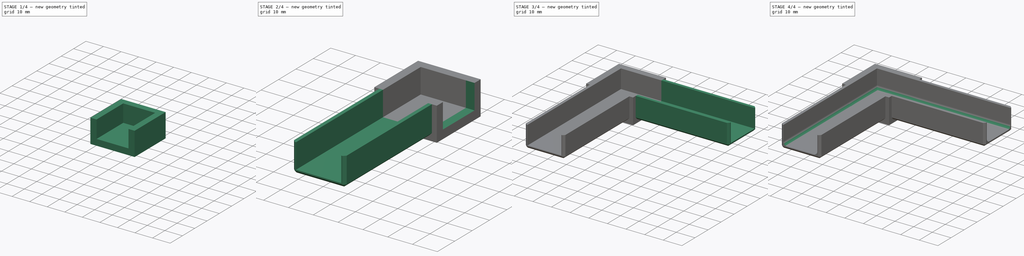
[diagram: build sequence overview — one tinted view per stage of 4, left to right]
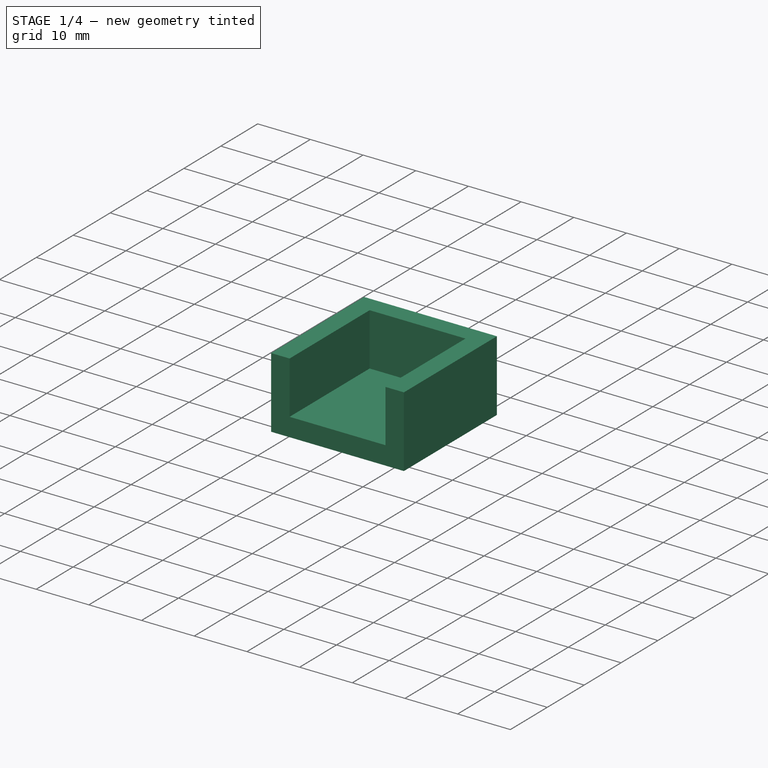
[diagram: stage 1 of 4 — iso view after this stage's code; geometry added in this stage tinted green]
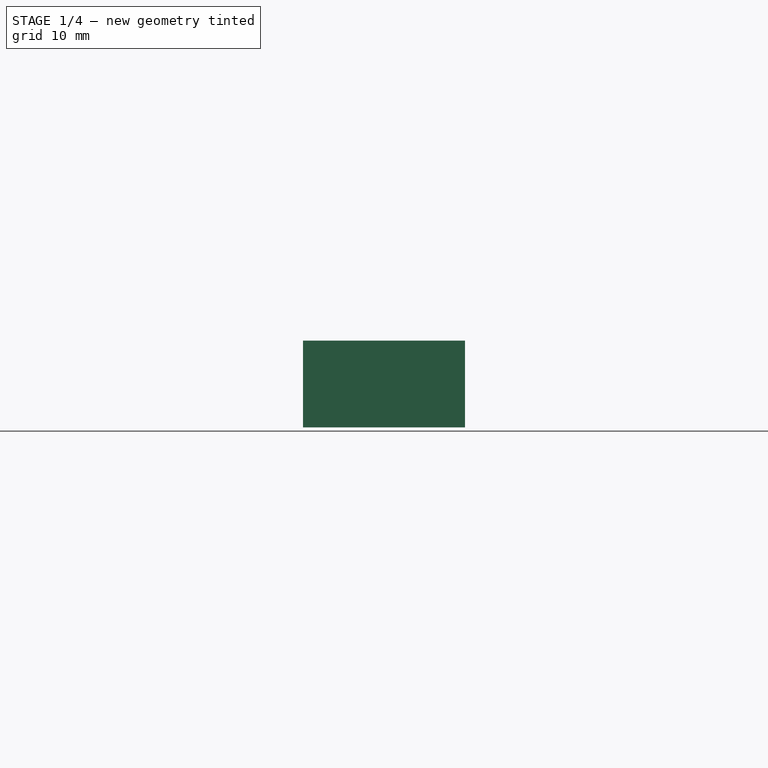
[diagram: stage 1 of 4 — front view after this stage's code; geometry added in this stage tinted green]
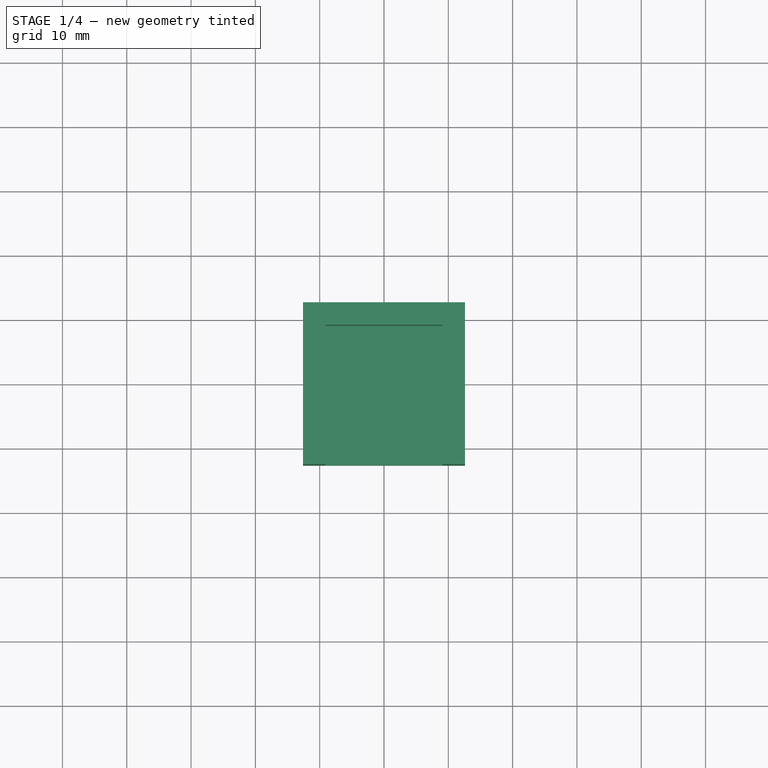
[diagram: stage 1 of 4 — top view after this stage's code; geometry added in this stage tinted green]
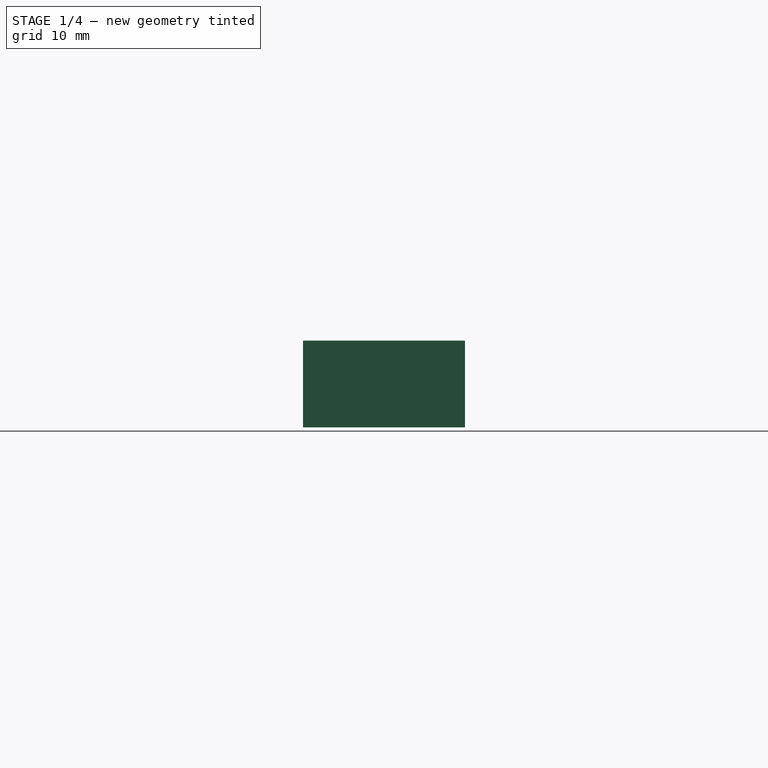
[diagram: stage 1 of 4 — right view after this stage's code; geometry added in this stage tinted green]
FCSTD DOCUMENT  (FreeCAD 0.20R29603 (Git))
Label: Eckverbinder 25x25x2mm Halbsschale
License: All rights reserved
LicenseURL: http://en.wikipedia.org/wiki/All_rights_reserved
objects: Sketcher::SketchObject×5, PartDesign::Pad×3, PartDesign::Fillet×3, PartDesign::Pocket×2, PartDesign::Chamfer×2, PartDesign::Thickness×1, PartDesign::Body×1
note: 28 computed .brp shape members not serialized (recipe doc carries the construction recipe); baked Part::Feature solids carry a one-line shape summary decoded from their .brp

FEATURE [Sketcher::SketchObject] Sketch
  FullyConstrained = true
  MapMode = 5
  Support = -> [XY_Plane]
  sketch-geometry (5):
    g0: LineSegment StartX=-12.6 StartY=12.6 StartZ=0 EndX=-12.6 EndY=-12.6 EndZ=0
    g1: LineSegment StartX=-12.6 StartY=-12.6 StartZ=0 EndX=12.6 EndY=-12.6 EndZ=0
    g2: LineSegment StartX=12.6 StartY=-12.6 StartZ=0 EndX=12.6 EndY=12.6 EndZ=0
    g3: LineSegment StartX=12.6 StartY=12.6 StartZ=0 EndX=-12.6 EndY=12.6 EndZ=0
    g4: GeomPoint X=0 Y=0 Z=0
  constraints (12):
    c: Coincident(g0,g1)
    c: Coincident(g1,g2)
    c: Coincident(g2,g3)
    c: Coincident(g3,g0)
    c: Horizontal(g1)
    c: Horizontal(g3)
    c: Vertical(g0)
    c: Vertical(g2)
    c: Symmetric(g1,g0,g4)
    c: Coincident(g4,g-1)
    c: Distance(g3) = 25.2
    c: Distance(g2) = 25.2
FEATURE [PartDesign::Pad] Pad
  Direction = (0,0,1)
  Length = 13.5
  Length2 = 10
  Profile = -> Sketch
  ReferenceAxis = -> Sketch [N_Axis]
  Type = 0
FEATURE [PartDesign::Thickness] Thickness
  Base = -> Pad [Face6]
  BaseFeature = -> Pad
  Intersection = false
  Join = 1
  Mode = 0
  Reversed = true
  SupportTransform = false
  Value = 3.5
FEATURE [Sketcher::SketchObject] Sketch001
  ExternalGeometry = -> [Thickness]
  FullyConstrained = true
  MapMode = 5
  Placement = pos=(0,-12.6,0) rot=(1,0,0;1.5708rad)
  Support = -> [Thickness]
  sketch-geometry (4):
    g0: LineSegment StartX=-9.1 StartY=13.5 StartZ=0 EndX=9.1 EndY=13.5 EndZ=0
    g1: LineSegment StartX=9.1 StartY=13.5 StartZ=0 EndX=9.1 EndY=3.5 EndZ=0
    g2: LineSegment StartX=9.1 StartY=3.5 StartZ=0 EndX=-9.1 EndY=3.5 EndZ=0
    g3: LineSegment StartX=-9.1 StartY=3.5 StartZ=0 EndX=-9.1 EndY=13.5 EndZ=0
  constraints (11):
    c: Coincident(g0,g1)
    c: Coincident(g1,g2)
    c: Coincident(g2,g3)
    c: Coincident(g3,g0)
    c: Horizontal(g0)
    c: Vertical(g1)
    c: Vertical(g3)
    c: PointOnObject(g0,g-3)
    c: Symmetric(g2,g1,g-2)
    c: Distance(g1,g-4) = 3.5
    c: Distance(g-5,g1) = 3.5
FEATURE [PartDesign::Pocket] Pocket
  BaseFeature = -> Thickness
  Direction = (0,1,-2e-16)
  Length = 3.5
  Length2 = 5
  Profile = -> Sketch001
  ReferenceAxis = -> Sketch001 [N_Axis]
  Type = 0
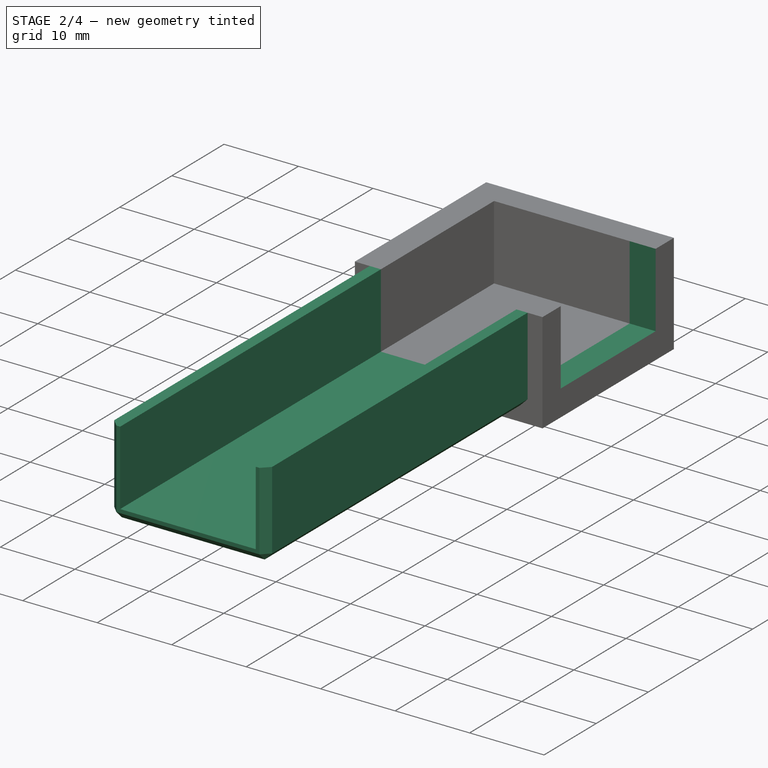
[diagram: stage 2 of 4 — iso view after this stage's code; geometry added in this stage tinted green]
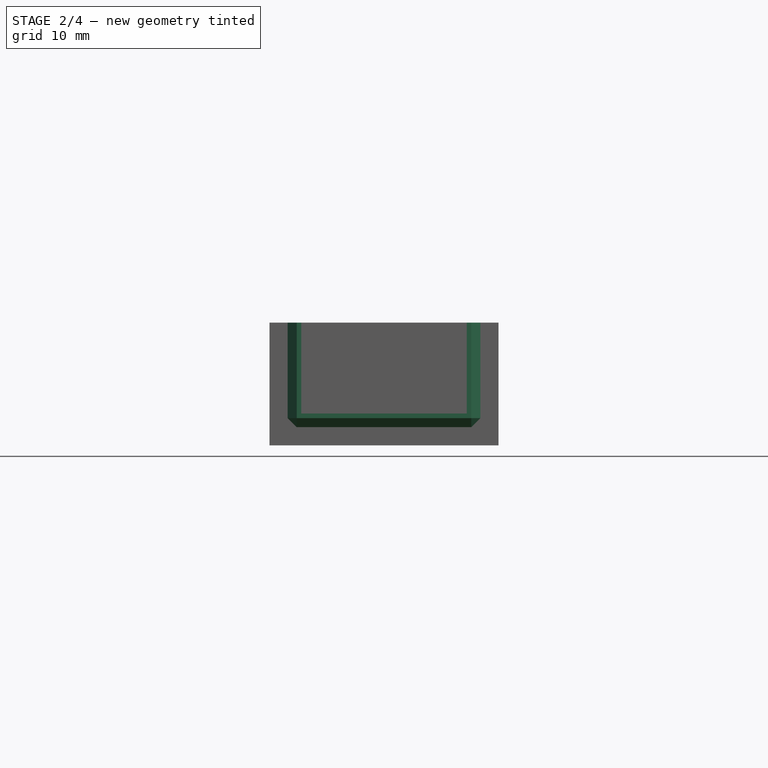
[diagram: stage 2 of 4 — front view after this stage's code; geometry added in this stage tinted green]
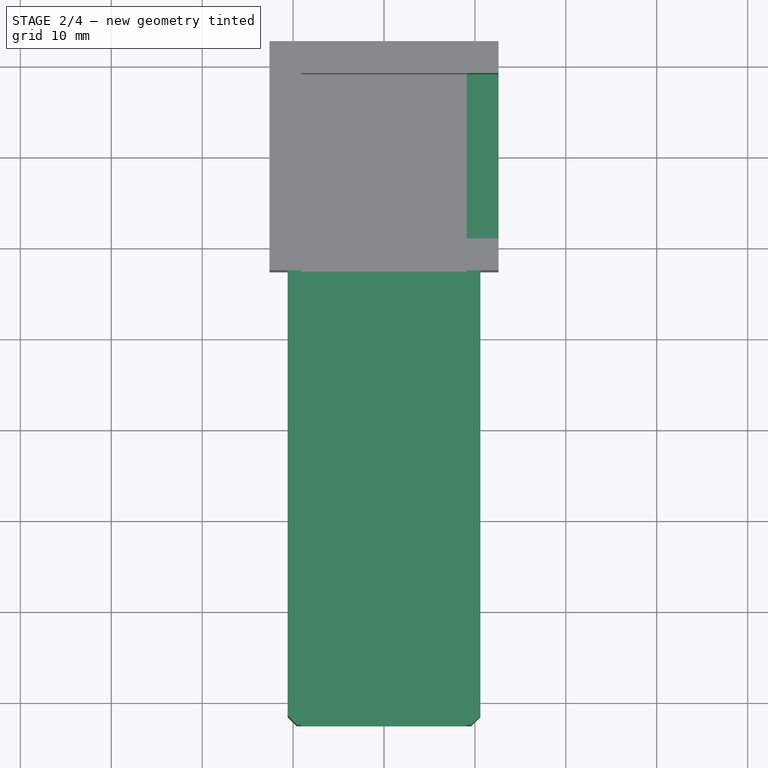
[diagram: stage 2 of 4 — top view after this stage's code; geometry added in this stage tinted green]
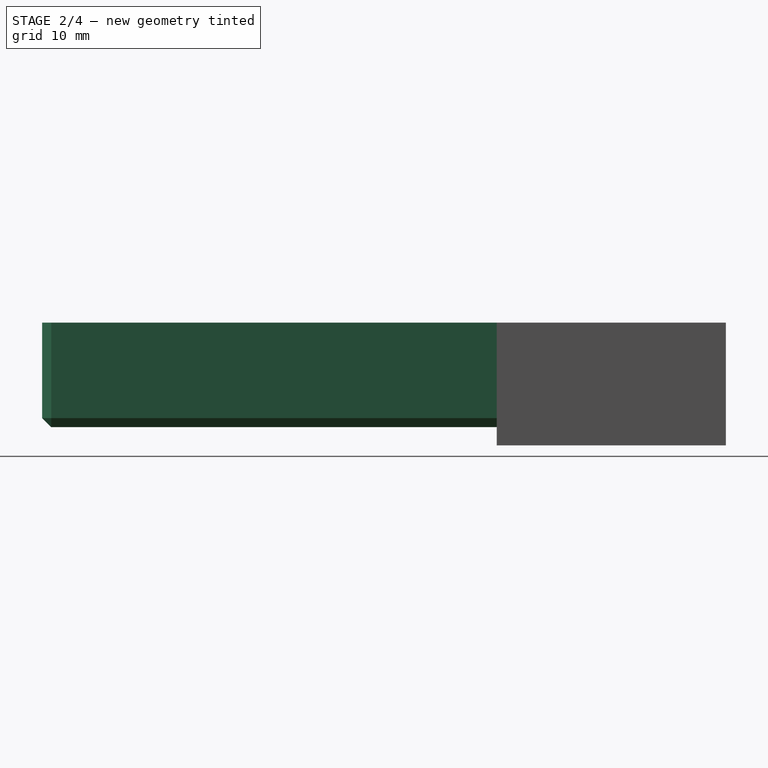
[diagram: stage 2 of 4 — right view after this stage's code; geometry added in this stage tinted green]
FEATURE [Sketcher::SketchObject] Sketch002
  ExternalGeometry = -> [Pocket]
  FullyConstrained = true
  MapMode = 5
  Placement = pos=(0,-12.6,0) rot=(1,0,0;1.5708rad)
  Support = -> [Pocket]
  sketch-geometry (8):
    g0: LineSegment StartX=-10.6 StartY=13.5 StartZ=0 EndX=-10.6 EndY=2 EndZ=0
    g1: LineSegment StartX=-10.6 StartY=2 StartZ=0 EndX=10.6 EndY=2 EndZ=0
    g2: LineSegment StartX=10.6 StartY=2 StartZ=0 EndX=10.6 EndY=13.5 EndZ=0
    g3: LineSegment StartX=10.6 StartY=13.5 StartZ=0 EndX=9.1 EndY=13.5 EndZ=0
    g4: LineSegment StartX=9.1 StartY=13.5 StartZ=0 EndX=9.1 EndY=3.5 EndZ=0
    g5: LineSegment StartX=9.1 StartY=3.5 StartZ=0 EndX=-9.1 EndY=3.5 EndZ=0
    g6: LineSegment StartX=-9.1 StartY=3.5 StartZ=0 EndX=-9.1 EndY=13.5 EndZ=0
    g7: LineSegment StartX=-9.1 StartY=13.5 StartZ=0 EndX=-10.6 EndY=13.5 EndZ=0
  constraints (20):
    c: PointOnObject(g0,g-3)
    c: Vertical(g0)
    c: Coincident(g0,g1)
    c: Coincident(g1,g2)
    c: PointOnObject(g2,g-6)
    c: Vertical(g2)
    c: Coincident(g2,g3)
    c: Coincident(g3,g4)
    c: Vertical(g4)
    c: Coincident(g4,g5)
    c: Horizontal(g5)
    c: Coincident(g5,g6)
    c: Coincident(g6,g7)
    c: Coincident(g7,g0)
    c: Distance(g-4,g0) = 2
    c: Coincident(g6,g-3)
    c: Coincident(g3,g-6)
    c: Distance(g0,g-5) = 2
    c: Coincident(g5,g-7)
    c: Symmetric(g0,g1,g-2)
FEATURE [PartDesign::Pad] Pad001
  BaseFeature = -> Pocket
  Direction = (0,-1,2e-16)
  Length = 50
  Length2 = 10
  Profile = -> Sketch002
  ReferenceAxis = -> Sketch002 [N_Axis]
  Type = 0
FEATURE [PartDesign::Chamfer] Chamfer
  Angle = 45
  Base = -> Pad001 [Edge28,Edge24,Edge27,Edge26,Edge30]
  BaseFeature = -> Pad001
  ChamferType = 0
  FlipDirection = false
  Size = 1
  Size2 = 1
  SupportTransform = false
  UseAllEdges = false
FEATURE [Sketcher::SketchObject] Sketch003
  ExternalGeometry = -> [Chamfer]
  FullyConstrained = true
  MapMode = 5
  Placement = pos=(12.6,0,0) rot=(0.57735,0.57735,0.57735;2.0944rad)
  Support = -> [Chamfer]
  sketch-geometry (4):
    g0: LineSegment StartX=-9.1 StartY=13.5 StartZ=0 EndX=9.1 EndY=13.5 EndZ=0
    g1: LineSegment StartX=9.1 StartY=13.5 StartZ=0 EndX=9.1 EndY=3.5 EndZ=0
    g2: LineSegment StartX=9.1 StartY=3.5 StartZ=0 EndX=-9.1 EndY=3.5 EndZ=0
    g3: LineSegment StartX=-9.1 StartY=3.5 StartZ=0 EndX=-9.1 EndY=13.5 EndZ=0
  constraints (11):
    c: Coincident(g0,g1)
    c: Coincident(g1,g2)
    c: Coincident(g2,g3)
    c: Coincident(g3,g0)
    c: Horizontal(g0)
    c: Vertical(g1)
    c: Vertical(g3)
    c: PointOnObject(g0,g-3)
    c: Distance(g1,g-4) = 3.5
    c: Distance(g1,g-5) = 3.5
    c: Symmetric(g1,g2,g-2)
FEATURE [PartDesign::Pocket] Pocket001
  BaseFeature = -> Chamfer
  Direction = (-1,0,0)
  Length = 3.5
  Length2 = 5
  Profile = -> Sketch003
  ReferenceAxis = -> Sketch003 [N_Axis]
  Type = 0
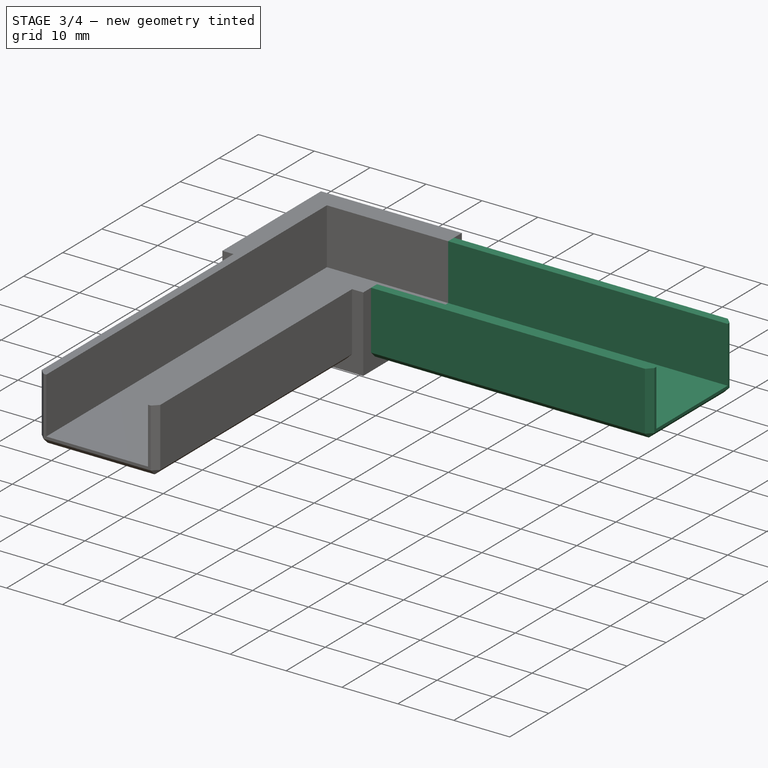
[diagram: stage 3 of 4 — iso view after this stage's code; geometry added in this stage tinted green]
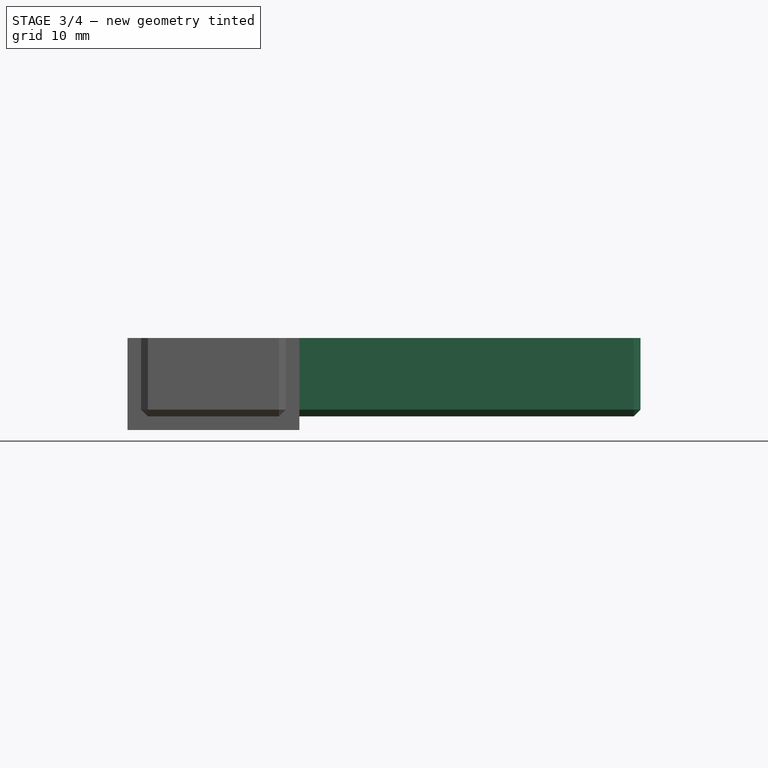
[diagram: stage 3 of 4 — front view after this stage's code; geometry added in this stage tinted green]
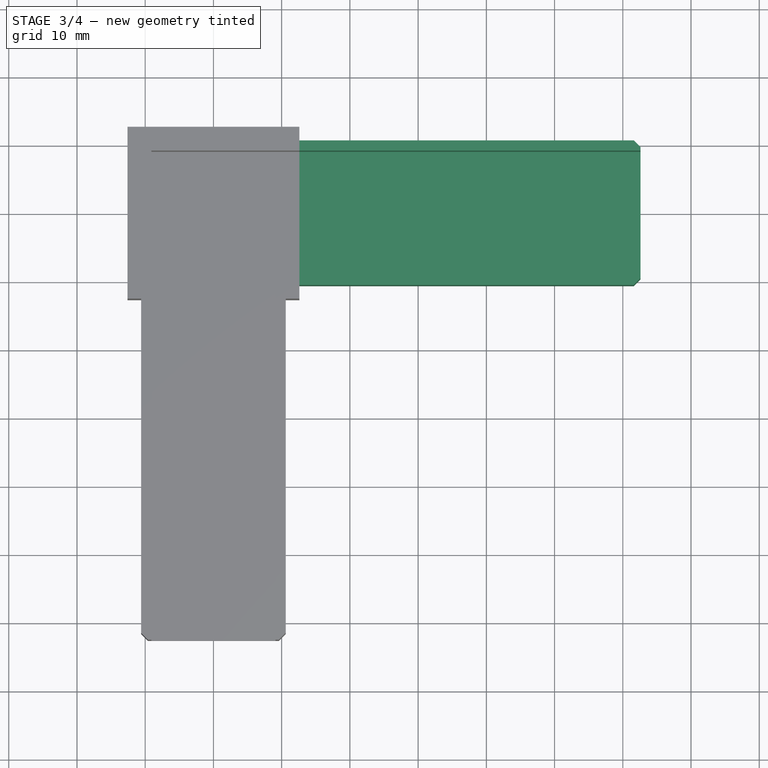
[diagram: stage 3 of 4 — top view after this stage's code; geometry added in this stage tinted green]
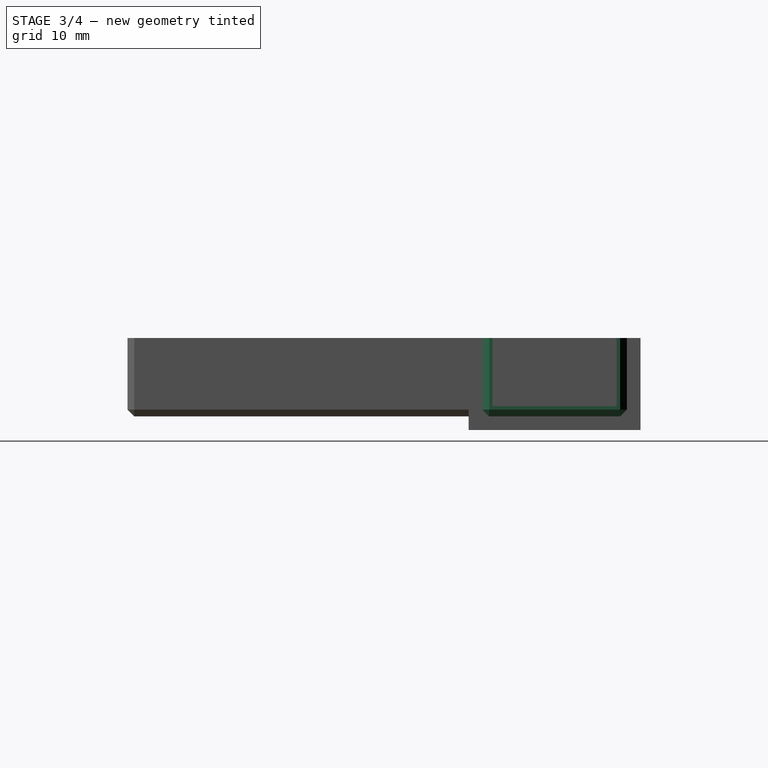
[diagram: stage 3 of 4 — right view after this stage's code; geometry added in this stage tinted green]
FEATURE [Sketcher::SketchObject] Sketch004
  ExternalGeometry = -> [Pocket001]
  FullyConstrained = true
  MapMode = 5
  Placement = pos=(12.6,0,0) rot=(0.57735,0.57735,0.57735;2.0944rad)
  Support = -> [Pocket001]
  sketch-geometry (8):
    g0: LineSegment StartX=10.6 StartY=13.5 StartZ=0 EndX=10.6 EndY=2 EndZ=0
    g1: LineSegment StartX=10.6 StartY=2 StartZ=0 EndX=-10.6 EndY=2 EndZ=0
    g2: LineSegment StartX=-10.6 StartY=2 StartZ=0 EndX=-10.6 EndY=13.5 EndZ=0
    g3: LineSegment StartX=-10.6 StartY=13.5 StartZ=0 EndX=-9.1 EndY=13.5 EndZ=0
    g4: LineSegment StartX=-9.1 StartY=13.5 StartZ=0 EndX=-9.1 EndY=3.5 EndZ=0
    g5: LineSegment StartX=-9.1 StartY=3.5 StartZ=0 EndX=9.1 EndY=3.5 EndZ=0
    g6: LineSegment StartX=9.1 StartY=3.5 StartZ=0 EndX=9.1 EndY=13.5 EndZ=0
    g7: LineSegment StartX=9.1 StartY=13.5 StartZ=0 EndX=10.6 EndY=13.5 EndZ=0
  constraints (19):
    c: PointOnObject(g0,g-4)
    c: Vertical(g0)
    c: Coincident(g0,g1)
    c: Coincident(g1,g2)
    c: PointOnObject(g2,g-3)
    c: Vertical(g2)
    c: Coincident(g2,g3)
    c: Coincident(g3,g-3)
    c: Coincident(g3,g4)
    c: Coincident(g4,g-5)
    c: Coincident(g4,g5)
    c: Coincident(g5,g-5)
    c: Coincident(g5,g6)
    c: Coincident(g6,g-4)
    c: Coincident(g6,g7)
    c: Coincident(g7,g0)
    c: Symmetric(g0,g1,g-2)
    c: Distance(g0,g-7) = 2
    c: Distance(g0,g-6) = 2
FEATURE [PartDesign::Pad] Pad002
  BaseFeature = -> Pocket001
  Direction = (1,0,0)
  Length = 50
  Length2 = 10
  Profile = -> Sketch004
  ReferenceAxis = -> Sketch004 [N_Axis]
  Type = 0
FEATURE [PartDesign::Chamfer] Chamfer001
  Angle = 45
  Base = -> Pad002 [Edge63,Edge65,Edge64,Edge62,Edge61]
  BaseFeature = -> Pad002
  ChamferType = 0
  FlipDirection = false
  Size = 1
  Size2 = 1
  SupportTransform = false
  UseAllEdges = false
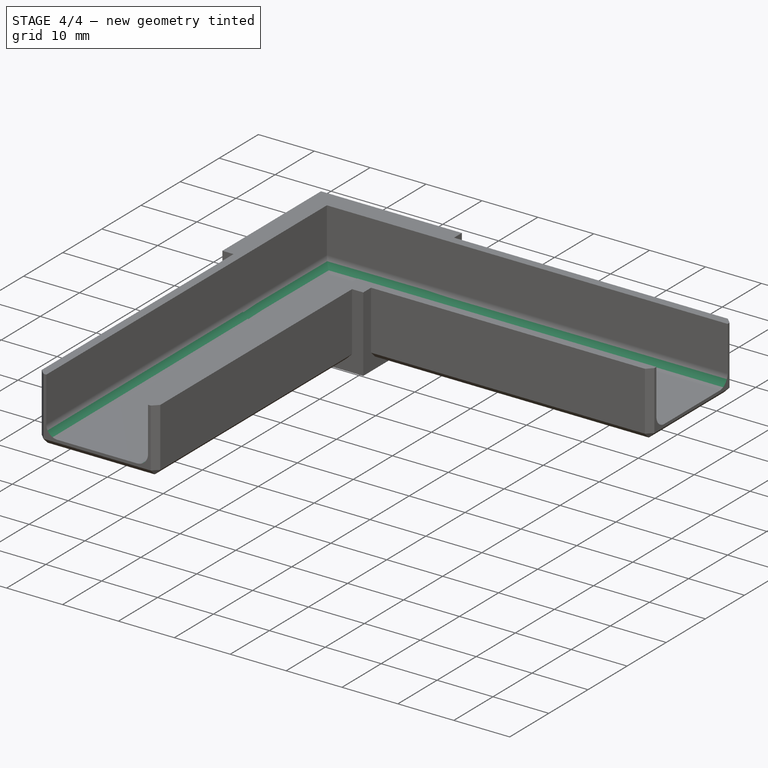
[diagram: stage 4 of 4 — iso view after this stage's code; geometry added in this stage tinted green]
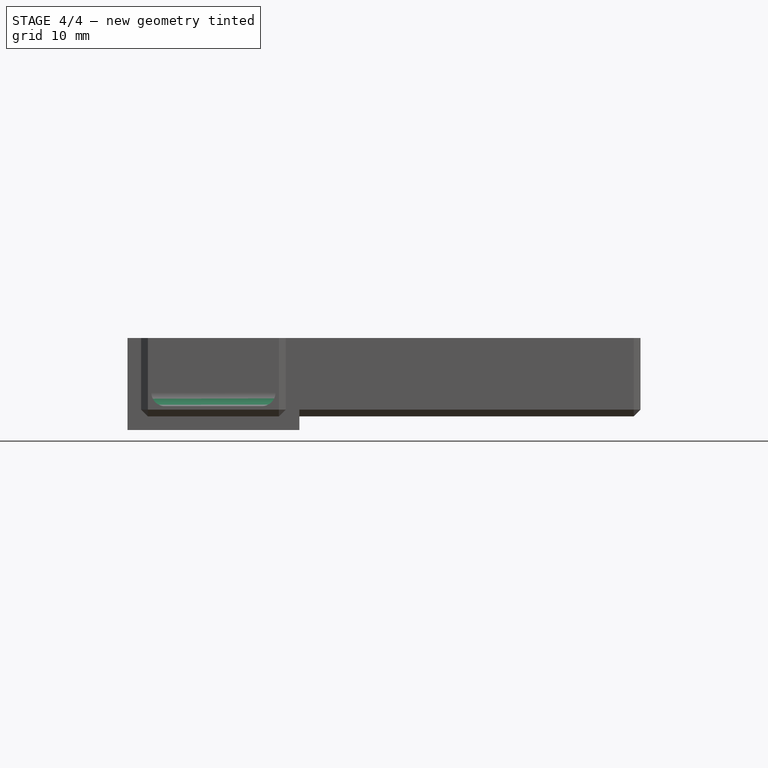
[diagram: stage 4 of 4 — front view after this stage's code; geometry added in this stage tinted green]
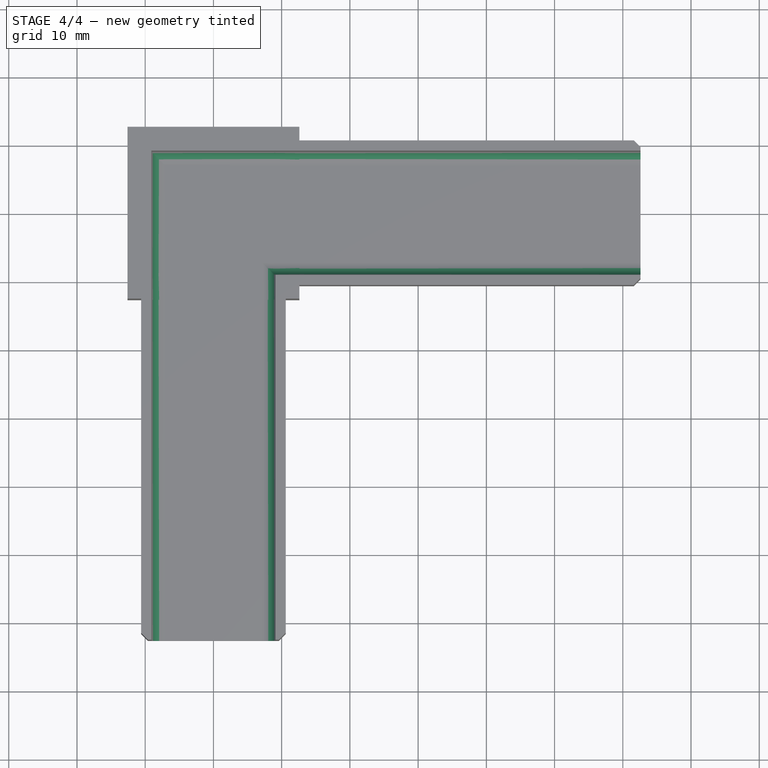
[diagram: stage 4 of 4 — top view after this stage's code; geometry added in this stage tinted green]
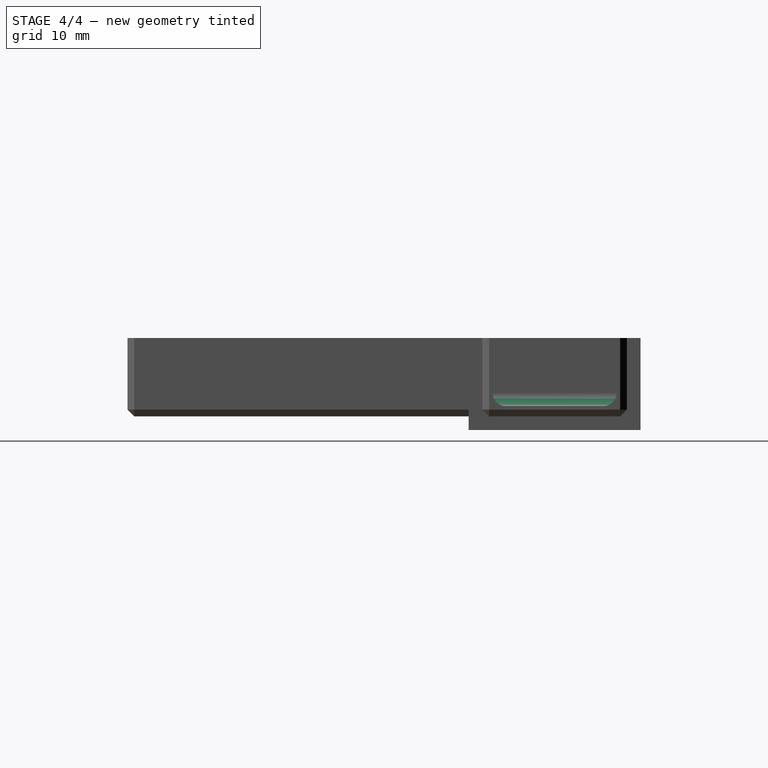
[diagram: stage 4 of 4 — right view after this stage's code; geometry added in this stage tinted green]
FEATURE [PartDesign::Fillet] Fillet
  Base = -> Chamfer001 [Edge93,Edge52,Edge55,Edge58,Edge59,Edge98]
  BaseFeature = -> Chamfer001
  Radius = 2
  SupportTransform = false
  UseAllEdges = false
FEATURE [PartDesign::Fillet] Fillet001
  Base = -> Fillet [Edge115]
  BaseFeature = -> Fillet
  Radius = 2
  SupportTransform = false
  UseAllEdges = false
FEATURE [PartDesign::Fillet] Fillet002
  Base = -> Fillet001 [Edge21]
  BaseFeature = -> Fillet001
  Radius = 2
  SupportTransform = false
  UseAllEdges = false
FEATURE [PartDesign::Body] Body
  Group = -> [Sketch,Pad,Thickness,Sketch001,Pocket,Sketch002,Pad001,Chamfer,Sketch003,Pocket001,Sketch004,Pad002,Chamfer001,Fillet,Fillet001,Fillet002]
  Origin = -> Origin
  Tip = -> Fillet002
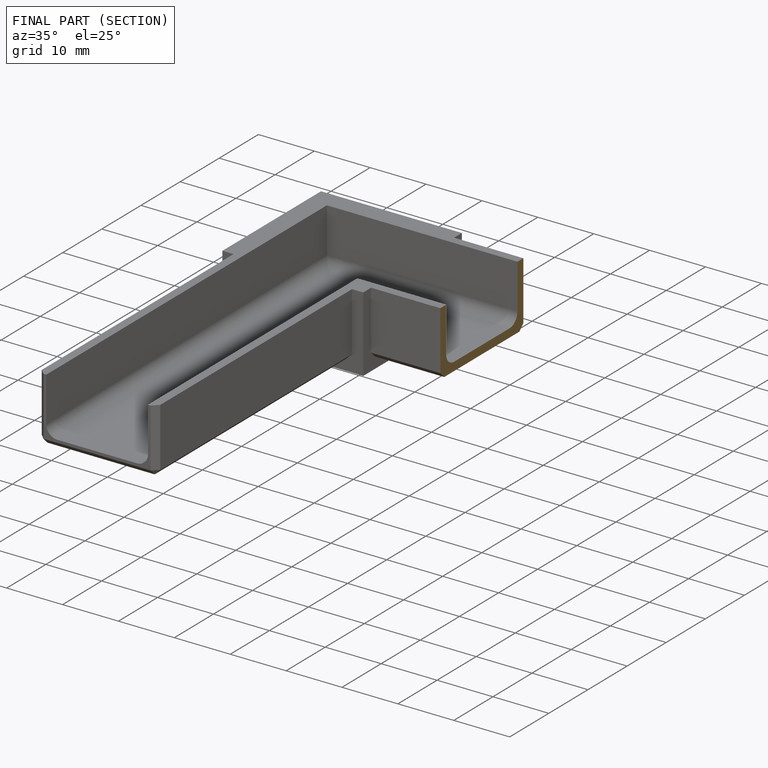
[diagram: finished part — half-section view (interior)]
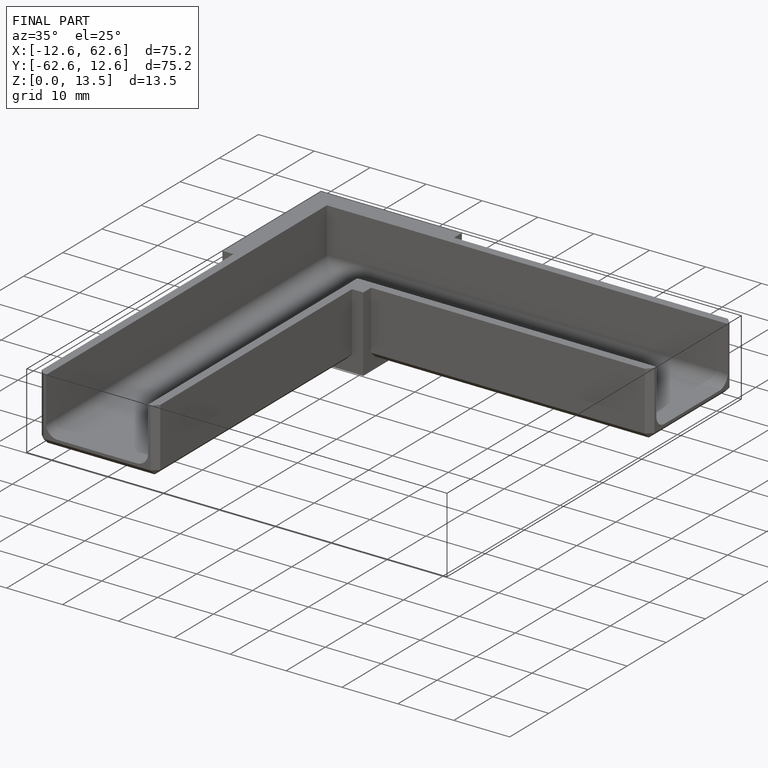
[diagram: finished part — iso view with bounding-box wireframe]
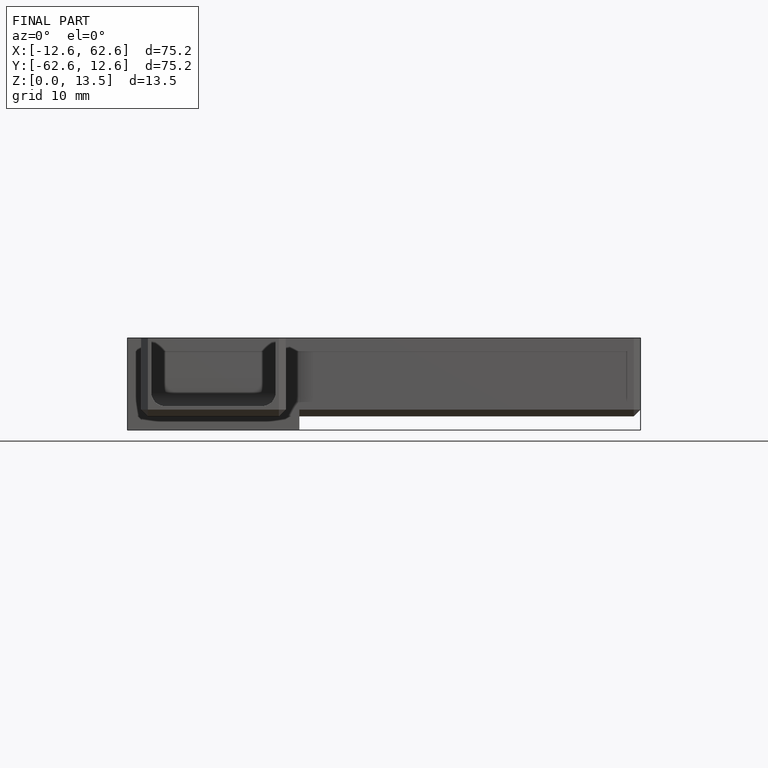
[diagram: finished part — front view with bounding-box wireframe]
